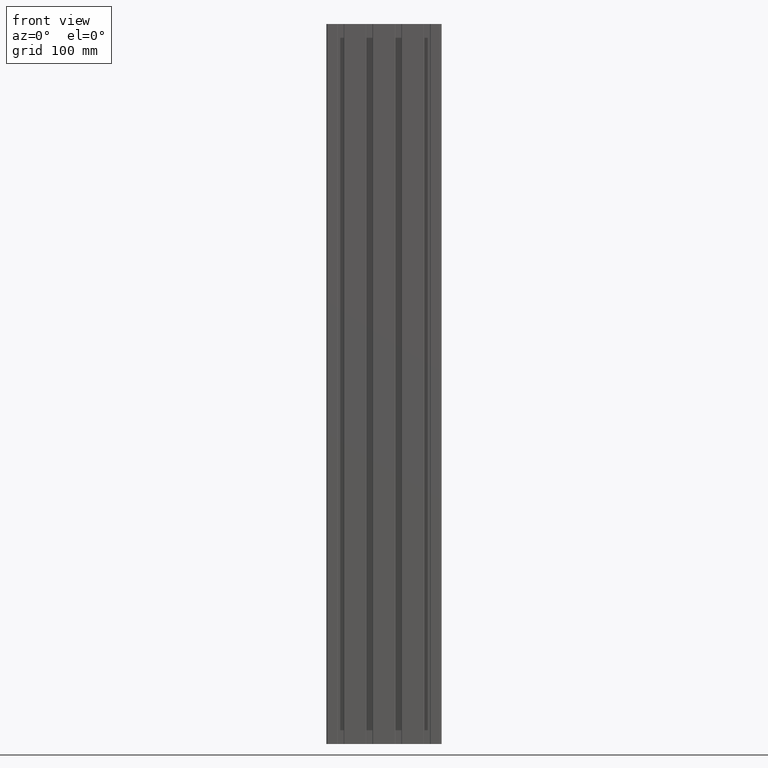
[diagram: clean part render]
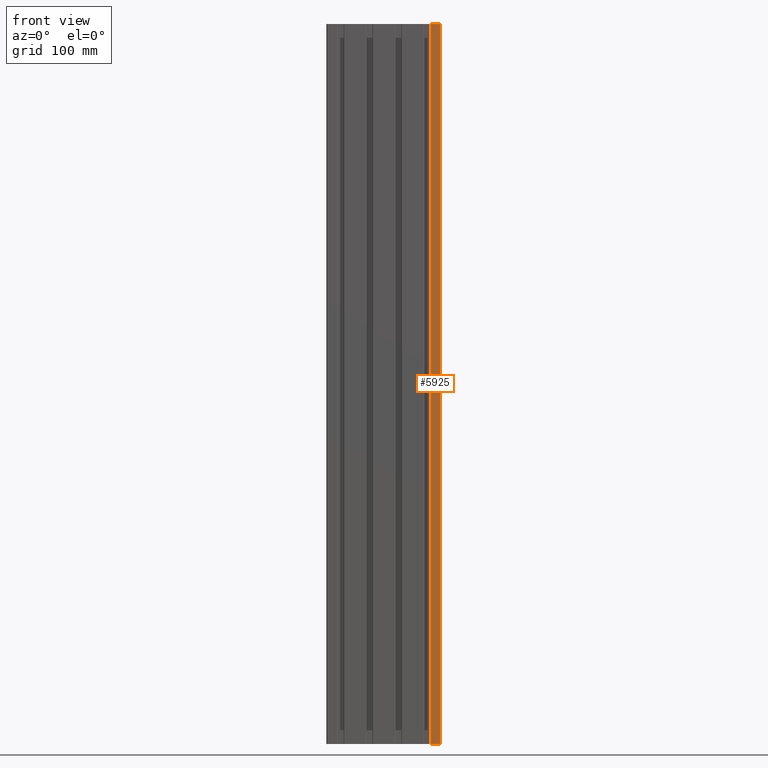
[diagram: same view with one face highlighted and labeled with its STEP entity id]
A machine part, front view. The second image highlights one B-rep face of the part: STEP entity #5925.
In plain terms, the highlighted planar face has unit normal (0, -1, 0).
Its self-contained STEP definition (entity closure, byte-faithful):
#153=PLANE('',#6550);
#425=FACE_OUTER_BOUND('',#747,.T.);
#747=EDGE_LOOP('',(#5301,#5302,#5303,#5304));
#1008=LINE('',#9098,#1592);
#1063=LINE('',#9301,#1647);
#1215=LINE('',#9795,#1799);
#1329=LINE('',#9998,#1913);
#1592=VECTOR('',#7183,10.);
#1647=VECTOR('',#7362,10.);
#1799=VECTOR('',#7808,10.);
#1913=VECTOR('',#8100,10.);
#2586=VERTEX_POINT('',#9095);
#2587=VERTEX_POINT('',#9097);
#2672=VERTEX_POINT('',#9298);
#2673=VERTEX_POINT('',#9300);
#3207=EDGE_CURVE('',#2586,#2587,#1008,.T.);
#3319=EDGE_CURVE('',#2672,#2673,#1063,.T.);
#3583=EDGE_CURVE('',#2587,#2672,#1215,.T.);
#3697=EDGE_CURVE('',#2673,#2586,#1329,.T.);
#5301=ORIENTED_EDGE('',*,*,#3583,.F.);
#5302=ORIENTED_EDGE('',*,*,#3207,.F.);
#5303=ORIENTED_EDGE('',*,*,#3697,.F.);
#5304=ORIENTED_EDGE('',*,*,#3319,.F.);
#5925=ADVANCED_FACE('',(#425),#153,.T.);
#6550=AXIS2_PLACEMENT_3D('',#10091,#8254,#8255);
#7183=DIRECTION('',(-1.,0.,0.));
#7362=DIRECTION('',(1.,0.,0.));
#7808=DIRECTION('',(0.,0.,1.));
#8100=DIRECTION('',(0.,0.,-1.));
#8254=DIRECTION('center_axis',(0.,-1.,0.));
#8255=DIRECTION('ref_axis',(1.,0.,0.));
#9095=CARTESIAN_POINT('',(78.,-40.,0.));
#9097=CARTESIAN_POINT('',(65.15,-40.,0.));
#9098=CARTESIAN_POINT('',(80.,-40.,0.));
#9298=CARTESIAN_POINT('',(65.15,-40.,1000.));
#9300=CARTESIAN_POINT('',(78.,-40.,1000.));
#9301=CARTESIAN_POINT('',(80.,-40.,1000.));
#9795=CARTESIAN_POINT('',(65.15,-40.,0.));
#9998=CARTESIAN_POINT('',(78.,-40.,0.));
#10091=CARTESIAN_POINT('Origin',(-80.,-40.,0.));